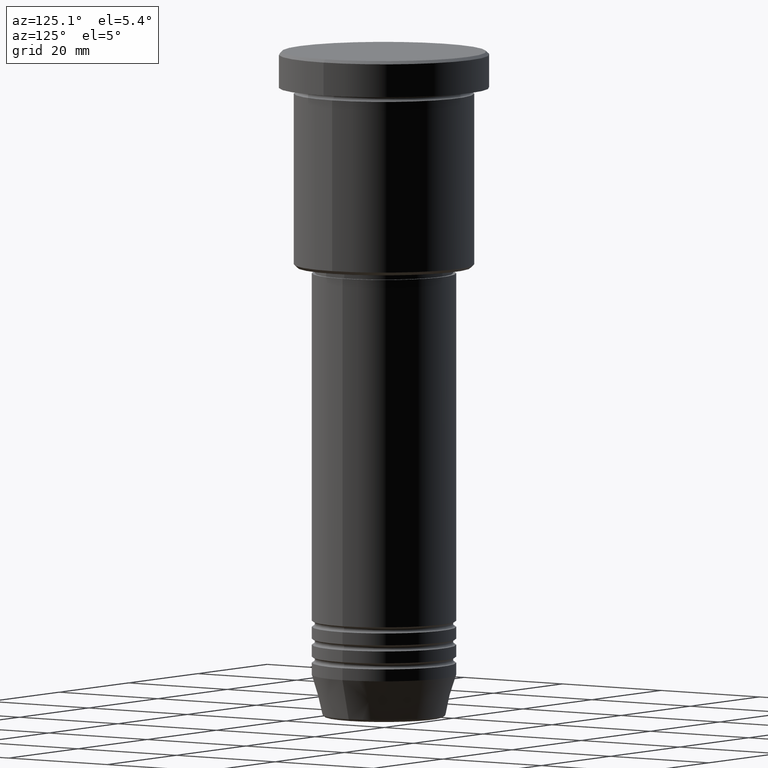
[diagram: clean part render]
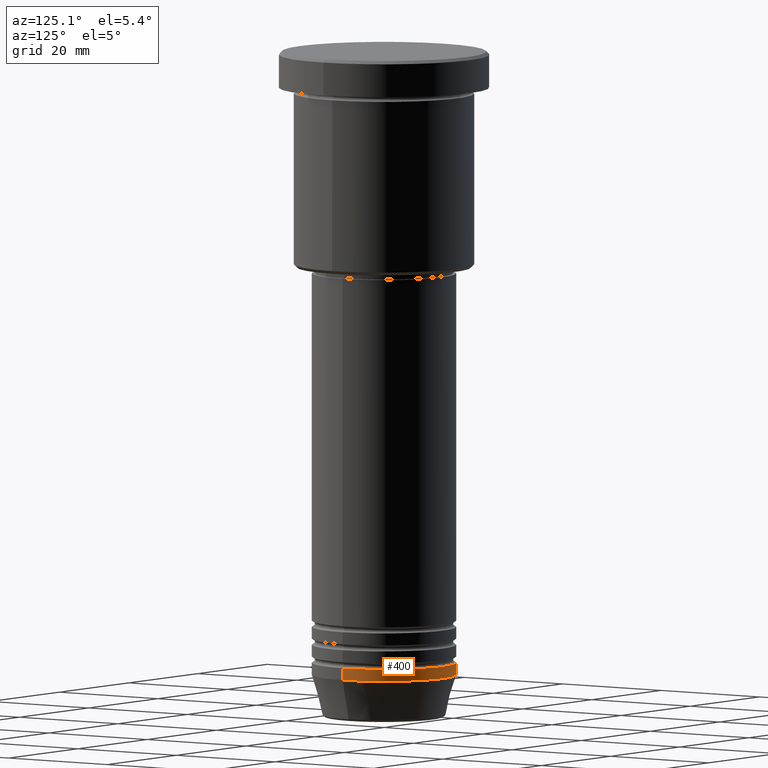
[diagram: same view with one face highlighted and labeled with its STEP entity id]
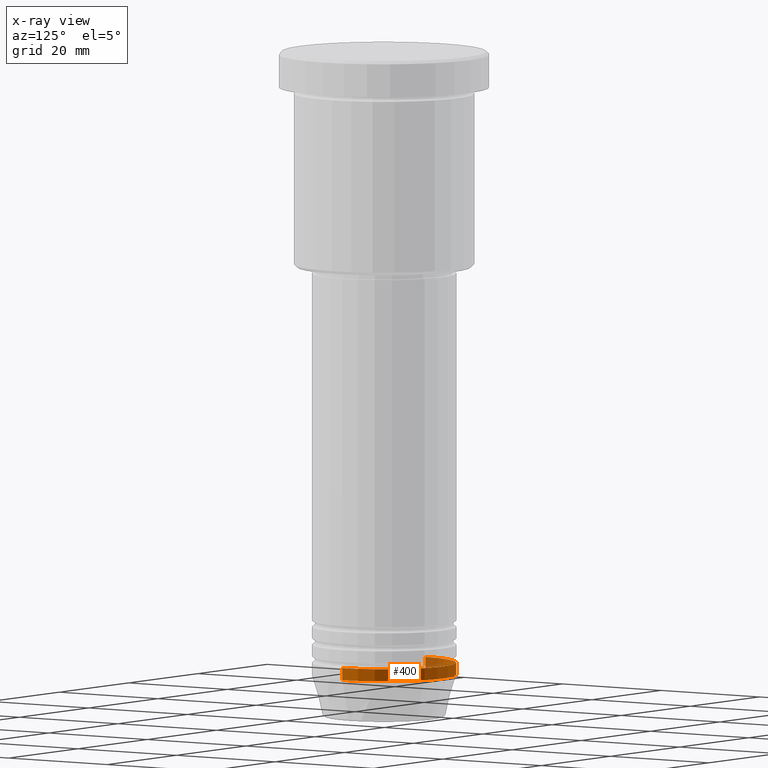
[diagram: x-ray of the same camera — body ghosted, the highlighted face saturated]
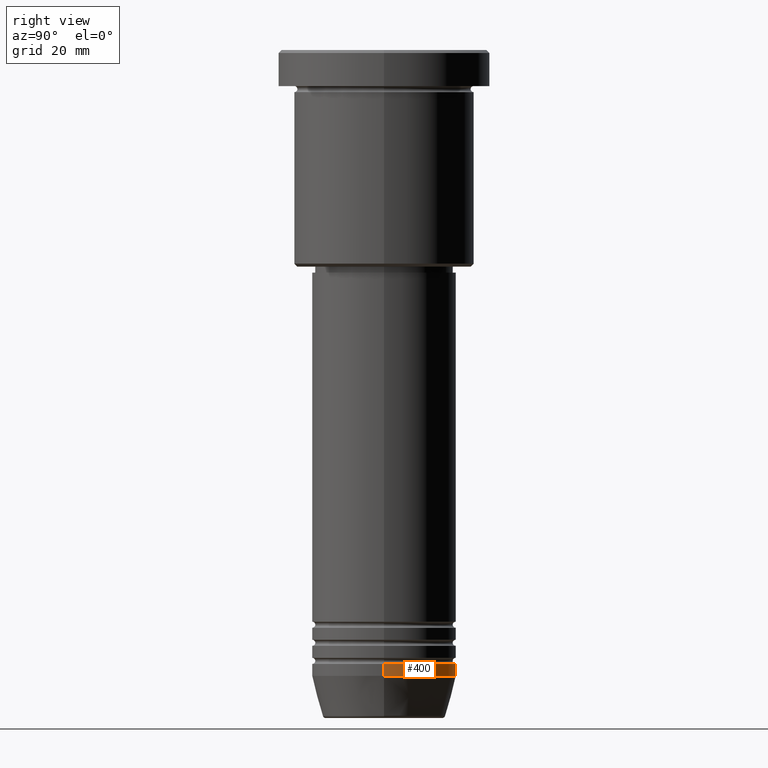
[diagram: same view with one face highlighted and labeled with its STEP entity id]
A machine part, auxiliary view. The second image highlights one B-rep face of the part: STEP entity #400.
The next image is the same camera in x-ray: the body ghosted, the highlighted face saturated — about 11% of this face is hidden behind the body in this view.
A second angle (right view) of the same face is appended — the face is thin or edge-on in the first view.
In plain terms, the highlighted cylindrical surface (partial cylindrical patch) has radius 12 mm, axis along (-0, -0, 1).
Its self-contained STEP definition (entity closure, byte-faithful):
#17 = DIRECTION ( 'NONE',  ( -0.000000000000000000, -0.000000000000000000, 1.000000000000000000 ) ) ;
#19 = CARTESIAN_POINT ( 'NONE',  ( -12.00000000000000000, 1.469576158976823947E-15, -104.0000000000000142 ) ) ;
#80 = FACE_OUTER_BOUND ( 'NONE', #673, .T. ) ;
#107 = CARTESIAN_POINT ( 'NONE',  ( -12.00000000000000000, 1.469576158976823947E-15, -102.0000000000000142 ) ) ;
#148 = ORIENTED_EDGE ( 'NONE', *, *, #945, .F. ) ;
#159 = DIRECTION ( 'NONE',  ( -0.000000000000000000, -0.000000000000000000, 1.000000000000000000 ) ) ;
#165 = VECTOR ( 'NONE', #625, 1000.000000000000000 ) ;
#216 = DIRECTION ( 'NONE',  ( 1.000000000000000000, 0.000000000000000000, 0.000000000000000000 ) ) ;
#261 = CARTESIAN_POINT ( 'NONE',  ( -12.00000000000000000, 1.469576158976823947E-15, 0.000000000000000000 ) ) ;
#273 = VECTOR ( 'NONE', #686, 1000.000000000000000 ) ;
#306 = CARTESIAN_POINT ( 'NONE',  ( 0.000000000000000000, 0.000000000000000000, -102.0000000000000142 ) ) ;
#309 = AXIS2_PLACEMENT_3D ( 'NONE', #306, #17, #216 ) ;
#323 = DIRECTION ( 'NONE',  ( 1.000000000000000000, 0.000000000000000000, 0.000000000000000000 ) ) ;
#339 = EDGE_CURVE ( 'NONE', #465, #346, #1001, .T. ) ;
#346 = VERTEX_POINT ( 'NONE', #107 ) ;
#365 = DIRECTION ( 'NONE',  ( -0.000000000000000000, -0.000000000000000000, 1.000000000000000000 ) ) ;
#400 = ADVANCED_FACE ( 'NONE', ( #80 ), #899, .T. ) ;
#413 = VERTEX_POINT ( 'NONE', #19 ) ;
#431 = CARTESIAN_POINT ( 'NONE',  ( 12.00000000000000000, 0.000000000000000000, -102.0000000000000142 ) ) ;
#459 = ORIENTED_EDGE ( 'NONE', *, *, #339, .F. ) ;
#465 = VERTEX_POINT ( 'NONE', #431 ) ;
#491 = EDGE_CURVE ( 'NONE', #999, #413, #603, .T. ) ;
#526 = LINE ( 'NONE', #261, #165 ) ;
#584 = EDGE_CURVE ( 'NONE', #413, #346, #526, .T. ) ;
#603 = CIRCLE ( 'NONE', #783, 12.00000000000000000 ) ;
#625 = DIRECTION ( 'NONE',  ( -0.000000000000000000, -0.000000000000000000, 1.000000000000000000 ) ) ;
#673 = EDGE_LOOP ( 'NONE', ( #849, #946, #459, #148 ) ) ;
#686 = DIRECTION ( 'NONE',  ( -0.000000000000000000, -0.000000000000000000, 1.000000000000000000 ) ) ;
#726 = DIRECTION ( 'NONE',  ( 1.000000000000000000, 0.000000000000000000, 0.000000000000000000 ) ) ;
#783 = AXIS2_PLACEMENT_3D ( 'NONE', #1027, #159, #323 ) ;
#799 = CARTESIAN_POINT ( 'NONE',  ( 12.00000000000000000, 0.000000000000000000, -104.0000000000000142 ) ) ;
#849 = ORIENTED_EDGE ( 'NONE', *, *, #491, .T. ) ;
#851 = LINE ( 'NONE', #1135, #273 ) ;
#899 = CYLINDRICAL_SURFACE ( 'NONE', #907, 12.00000000000000000 ) ;
#907 = AXIS2_PLACEMENT_3D ( 'NONE', #1181, #365, #726 ) ;
#945 = EDGE_CURVE ( 'NONE', #999, #465, #851, .T. ) ;
#946 = ORIENTED_EDGE ( 'NONE', *, *, #584, .T. ) ;
#999 = VERTEX_POINT ( 'NONE', #799 ) ;
#1001 = CIRCLE ( 'NONE', #309, 12.00000000000000000 ) ;
#1027 = CARTESIAN_POINT ( 'NONE',  ( 0.000000000000000000, 0.000000000000000000, -104.0000000000000142 ) ) ;
#1135 = CARTESIAN_POINT ( 'NONE',  ( 12.00000000000000000, 0.000000000000000000, 0.000000000000000000 ) ) ;
#1181 = CARTESIAN_POINT ( 'NONE',  ( 0.000000000000000000, 0.000000000000000000, 0.000000000000000000 ) ) ;